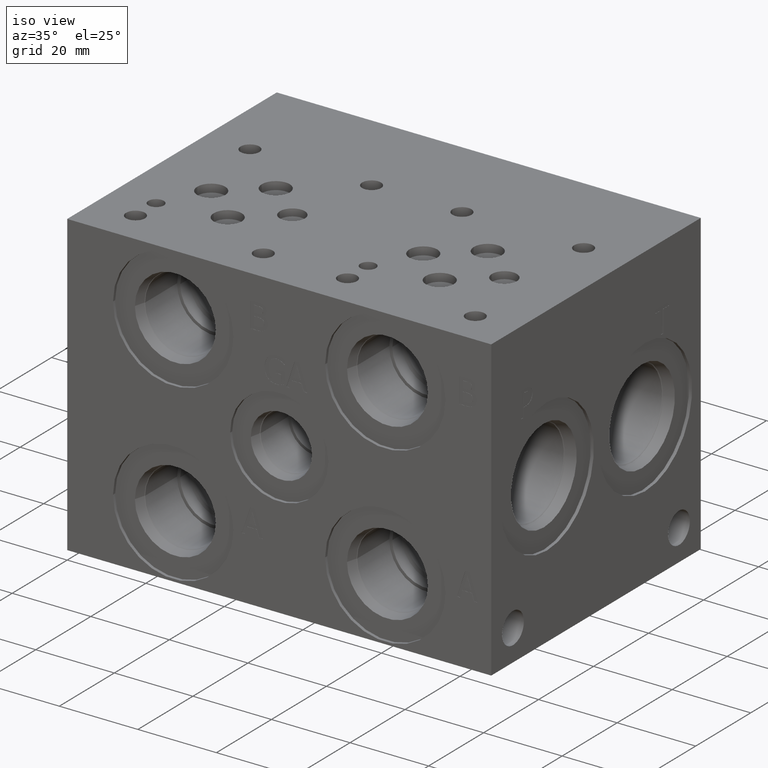
[diagram: clean part render]
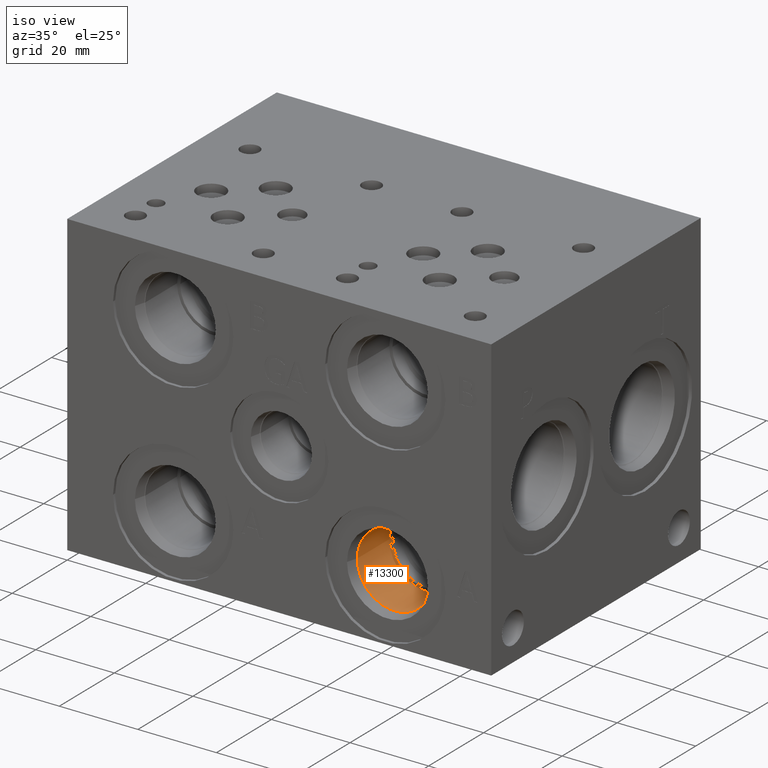
[diagram: same view with one face highlighted and labeled with its STEP entity id]
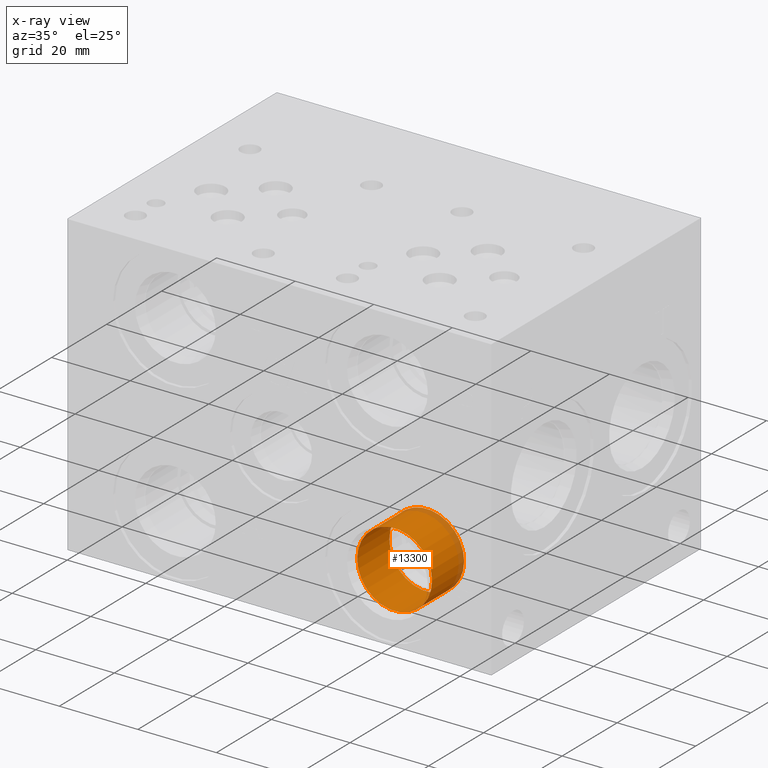
[diagram: x-ray of the same camera — body ghosted, the highlighted face saturated]
A machine part, iso view. The second image highlights one B-rep face of the part: STEP entity #13300.
The next image is the same camera in x-ray: the body ghosted, the highlighted face saturated — about 9% of this face is hidden behind the body in this view.
In plain terms, the highlighted cylindrical surface (bore or boss wall) has radius 9.525 mm, axis along (0, -1, 0).
Its self-contained STEP definition (entity closure, byte-faithful):
#127=CYLINDRICAL_SURFACE('',#14029,9.525);
#314=CIRCLE('',#13945,9.525);
#363=CIRCLE('',#14026,9.525);
#364=CIRCLE('',#14027,9.525);
#1748=FACE_OUTER_BOUND('',#2519,.T.);
#2519=EDGE_LOOP('',(#11435,#11436,#11437,#11438,#11439));
#3741=LINE('',#22839,#4917);
#4917=VECTOR('',#16625,9.525);
#6061=VERTEX_POINT('',#22671);
#6114=VERTEX_POINT('',#22832);
#6115=VERTEX_POINT('',#22833);
#7858=EDGE_CURVE('',#6061,#6061,#314,.T.);
#7933=EDGE_CURVE('',#6114,#6115,#363,.T.);
#7934=EDGE_CURVE('',#6115,#6114,#364,.T.);
#7936=EDGE_CURVE('',#6061,#6115,#3741,.T.);
#11435=ORIENTED_EDGE('',*,*,#7858,.T.);
#11436=ORIENTED_EDGE('',*,*,#7936,.T.);
#11437=ORIENTED_EDGE('',*,*,#7933,.F.);
#11438=ORIENTED_EDGE('',*,*,#7934,.F.);
#11439=ORIENTED_EDGE('',*,*,#7936,.F.);
#13300=ADVANCED_FACE('',(#1748),#127,.F.);
#13945=AXIS2_PLACEMENT_3D('',#22673,#16429,#16430);
#14026=AXIS2_PLACEMENT_3D('',#22834,#16617,#16618);
#14027=AXIS2_PLACEMENT_3D('',#22835,#16619,#16620);
#14029=AXIS2_PLACEMENT_3D('',#22838,#16623,#16624);
#16429=DIRECTION('center_axis',(0.,-1.,0.));
#16430=DIRECTION('ref_axis',(1.,0.,0.));
#16617=DIRECTION('center_axis',(0.,-1.,0.));
#16618=DIRECTION('ref_axis',(1.,0.,0.));
#16619=DIRECTION('center_axis',(0.,-1.,0.));
#16620=DIRECTION('ref_axis',(1.,0.,0.));
#16623=DIRECTION('center_axis',(0.,-1.,0.));
#16624=DIRECTION('ref_axis',(1.,0.,0.));
#16625=DIRECTION('',(0.,1.,0.));
#22671=CARTESIAN_POINT('',(71.4502,3.4036,15.875));
#22673=CARTESIAN_POINT('Origin',(80.9752,3.4036,15.875));
#22832=CARTESIAN_POINT('',(90.5002,15.0622,15.875));
#22833=CARTESIAN_POINT('',(71.4502,15.0622,15.875));
#22834=CARTESIAN_POINT('Origin',(80.9752,15.0622,15.875));
#22835=CARTESIAN_POINT('Origin',(80.9752,15.0622,15.875));
#22838=CARTESIAN_POINT('Origin',(80.9752,7.5311,15.875));
#22839=CARTESIAN_POINT('',(71.4502,7.5311,15.875));